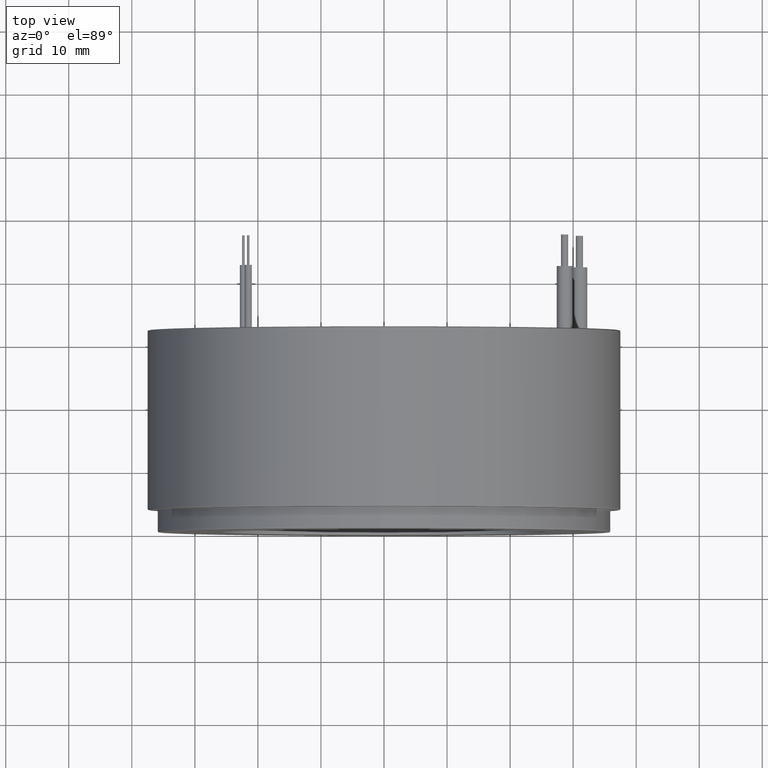
[diagram: clean part render]
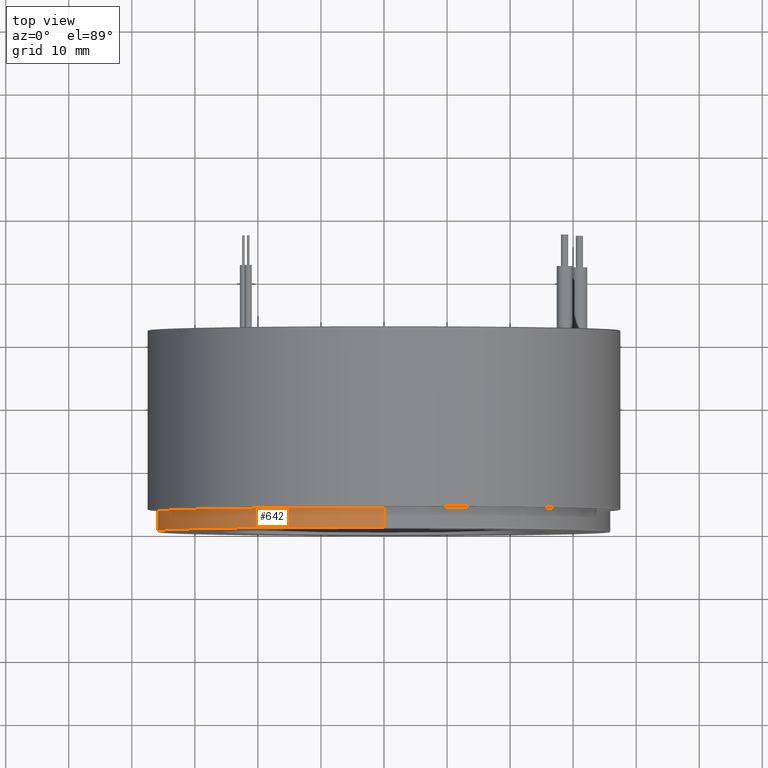
[diagram: same view with one face highlighted and labeled with its STEP entity id]
A machine part, top view. The second image highlights one B-rep face of the part: STEP entity #642.
In plain terms, the highlighted cylindrical surface (partial cylindrical patch) has radius 36 mm, axis along (-0, -1, -0).
Its self-contained STEP definition (entity closure, byte-faithful):
#105 = CARTESIAN_POINT ( 'NONE',  ( 0.0000000000000000000, 0.0000000000000000000, -36.00000000000000000 ) ) ;
#123 = VERTEX_POINT ( 'NONE', #987 ) ;
#155 = DIRECTION ( 'NONE',  ( -0.0000000000000000000, -1.000000000000000000, -0.0000000000000000000 ) ) ;
#179 = DIRECTION ( 'NONE',  ( 0.0000000000000000000, 0.0000000000000000000, -1.000000000000000000 ) ) ;
#285 = VECTOR ( 'NONE', #383, 1000.000000000000000 ) ;
#310 = LINE ( 'NONE', #2450, #3099 ) ;
#372 = LINE ( 'NONE', #105, #285 ) ;
#383 = DIRECTION ( 'NONE',  ( -0.0000000000000000000, -1.000000000000000000, -0.0000000000000000000 ) ) ;
#417 = EDGE_CURVE ( 'NONE', #1041, #2795, #372, .T. ) ;
#642 = ADVANCED_FACE ( 'NONE', ( #2475 ), #1017, .T. ) ;
#726 = EDGE_LOOP ( 'NONE', ( #2974, #1527, #843, #1184 ) ) ;
#752 = DIRECTION ( 'NONE',  ( -0.0000000000000000000, -1.000000000000000000, -0.0000000000000000000 ) ) ;
#843 = ORIENTED_EDGE ( 'NONE', *, *, #417, .T. ) ;
#972 = CIRCLE ( 'NONE', #1818, 36.00000000000000000 ) ;
#987 = CARTESIAN_POINT ( 'NONE',  ( 4.408728476930470900E-015, 0.1999999999999993700, 36.00000000000000000 ) ) ;
#994 = AXIS2_PLACEMENT_3D ( 'NONE', #1487, #752, #2026 ) ;
#1017 = CYLINDRICAL_SURFACE ( 'NONE', #994, 36.00000000000000000 ) ;
#1041 = VERTEX_POINT ( 'NONE', #1903 ) ;
#1169 = CIRCLE ( 'NONE', #3152, 36.00000000000000000 ) ;
#1179 = EDGE_CURVE ( 'NONE', #2795, #123, #972, .T. ) ;
#1184 = ORIENTED_EDGE ( 'NONE', *, *, #1179, .T. ) ;
#1201 = DIRECTION ( 'NONE',  ( 0.0000000000000000000, 1.000000000000000000, 0.0000000000000000000 ) ) ;
#1228 = DIRECTION ( 'NONE',  ( 0.0000000000000000000, 0.0000000000000000000, -1.000000000000000000 ) ) ;
#1487 = CARTESIAN_POINT ( 'NONE',  ( 0.0000000000000000000, 0.0000000000000000000, 0.0000000000000000000 ) ) ;
#1501 = CARTESIAN_POINT ( 'NONE',  ( 0.0000000000000000000, 3.299999999999999400, 0.0000000000000000000 ) ) ;
#1527 = ORIENTED_EDGE ( 'NONE', *, *, #1895, .T. ) ;
#1818 = AXIS2_PLACEMENT_3D ( 'NONE', #1988, #1201, #179 ) ;
#1895 = EDGE_CURVE ( 'NONE', #2444, #1041, #1169, .T. ) ;
#1903 = CARTESIAN_POINT ( 'NONE',  ( 0.0000000000000000000, 3.299999999999999400, -36.00000000000000000 ) ) ;
#1988 = CARTESIAN_POINT ( 'NONE',  ( 0.0000000000000000000, 0.1999999999999993700, 0.0000000000000000000 ) ) ;
#2026 = DIRECTION ( 'NONE',  ( 0.0000000000000000000, 0.0000000000000000000, -1.000000000000000000 ) ) ;
#2101 = CARTESIAN_POINT ( 'NONE',  ( 4.408728476930470900E-015, 3.299999999999999400, 36.00000000000000000 ) ) ;
#2444 = VERTEX_POINT ( 'NONE', #2101 ) ;
#2450 = CARTESIAN_POINT ( 'NONE',  ( 4.408728476930470900E-015, 0.0000000000000000000, 36.00000000000000000 ) ) ;
#2475 = FACE_OUTER_BOUND ( 'NONE', #726, .T. ) ;
#2554 = EDGE_CURVE ( 'NONE', #2444, #123, #310, .T. ) ;
#2795 = VERTEX_POINT ( 'NONE', #2837 ) ;
#2837 = CARTESIAN_POINT ( 'NONE',  ( 0.0000000000000000000, 0.1999999999999993700, -36.00000000000000000 ) ) ;
#2974 = ORIENTED_EDGE ( 'NONE', *, *, #2554, .F. ) ;
#3032 = DIRECTION ( 'NONE',  ( -0.0000000000000000000, -1.000000000000000000, -0.0000000000000000000 ) ) ;
#3099 = VECTOR ( 'NONE', #155, 1000.000000000000000 ) ;
#3152 = AXIS2_PLACEMENT_3D ( 'NONE', #1501, #3032, #1228 ) ;